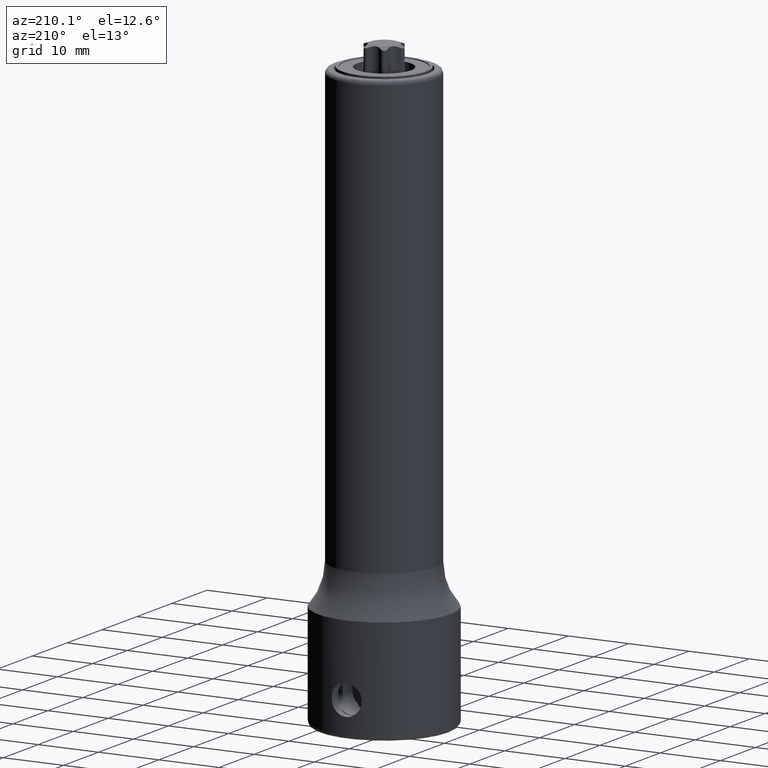
[diagram: clean part render]
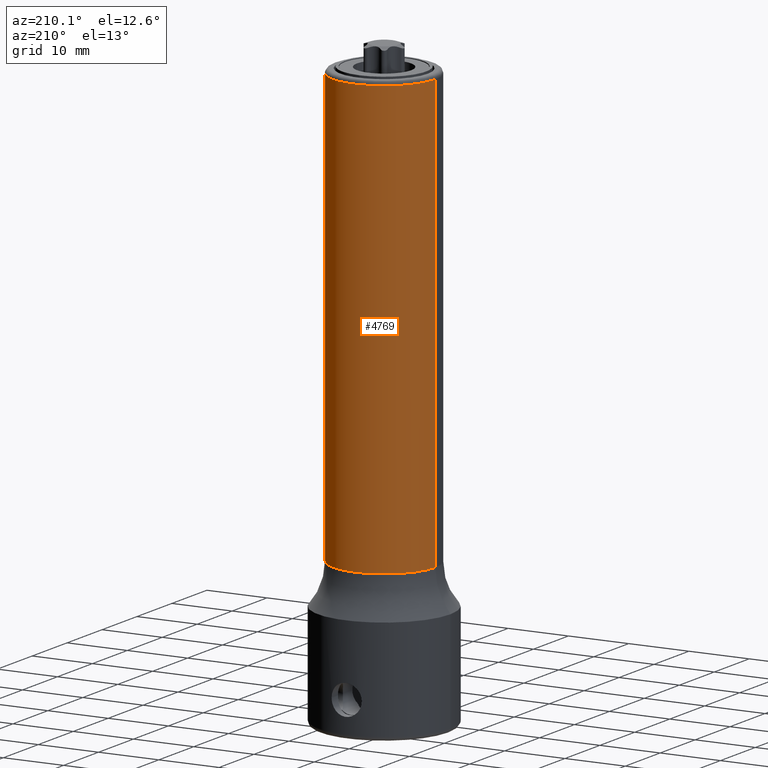
[diagram: same view with one face highlighted and labeled with its STEP entity id]
A machine part, auxiliary view. The second image highlights one B-rep face of the part: STEP entity #4769.
In plain terms, the highlighted cylindrical surface (partial cylindrical patch) has radius 8.5 mm, axis along (0, 0, 1).
Its self-contained STEP definition (entity closure, byte-faithful):
#4235=CARTESIAN_POINT('',(0.E0,0.E0,9.56E1));
#4236=DIRECTION('',(0.E0,0.E0,1.E0));
#4237=DIRECTION('',(-1.E0,0.E0,0.E0));
#4238=AXIS2_PLACEMENT_3D('',#4235,#4236,#4237);
#4243=CARTESIAN_POINT('',(0.E0,0.E0,2.381437833392E1));
#4244=DIRECTION('',(0.E0,0.E0,1.E0));
#4245=DIRECTION('',(-1.E0,0.E0,0.E0));
#4246=AXIS2_PLACEMENT_3D('',#4243,#4244,#4245);
#4251=DIRECTION('',(-7.389936786839E-13,-1.437517206941E-12,1.E0));
#4252=VECTOR('',#4251,7.178562169344E1);
#4253=CARTESIAN_POINT('',(-8.499999999947E0,0.E0,2.381437830656E1));
#4254=LINE('',#4253,#4252);
#4444=DIRECTION('',(7.389936786839E-13,1.437520064396E-12,1.E0));
#4445=VECTOR('',#4444,7.178562169344E1);
#4446=CARTESIAN_POINT('',(8.499999999947E0,0.E0,2.381437830656E1));
#4447=LINE('',#4446,#4445);
#4455=CARTESIAN_POINT('',(-8.5E0,0.E0,2.381437833392E1));
#4456=CARTESIAN_POINT('',(8.5E0,0.E0,2.381437833392E1));
#4457=VERTEX_POINT('',#4455);
#4458=VERTEX_POINT('',#4456);
#4471=CARTESIAN_POINT('',(8.5E0,0.E0,9.56E1));
#4472=CARTESIAN_POINT('',(-8.5E0,0.E0,9.56E1));
#4473=VERTEX_POINT('',#4471);
#4474=VERTEX_POINT('',#4472);
#4755=CARTESIAN_POINT('',(0.E0,0.E0,1.72E1));
#4756=DIRECTION('',(0.E0,0.E0,1.E0));
#4757=DIRECTION('',(1.E0,0.E0,0.E0));
#4758=AXIS2_PLACEMENT_3D('',#4755,#4756,#4757);
#4759=CYLINDRICAL_SURFACE('',#4758,8.5E0);
#4761=ORIENTED_EDGE('',*,*,#4760,.T.);
#4763=ORIENTED_EDGE('',*,*,#4762,.F.);
#4764=ORIENTED_EDGE('',*,*,#4749,.F.);
#4766=ORIENTED_EDGE('',*,*,#4765,.T.);
#4767=EDGE_LOOP('',(#4761,#4763,#4764,#4766));
#4768=FACE_OUTER_BOUND('',#4767,.F.);
#4769=ADVANCED_FACE('',(#4768),#4759,.T.);
#4239=CIRCLE('',#4238,8.5E0);
#4247=CIRCLE('',#4246,8.5E0);
#4749=EDGE_CURVE('',#4457,#4458,#4247,.T.);
#4760=EDGE_CURVE('',#4474,#4473,#4239,.T.);
#4762=EDGE_CURVE('',#4458,#4473,#4447,.T.);
#4765=EDGE_CURVE('',#4457,#4474,#4254,.T.);